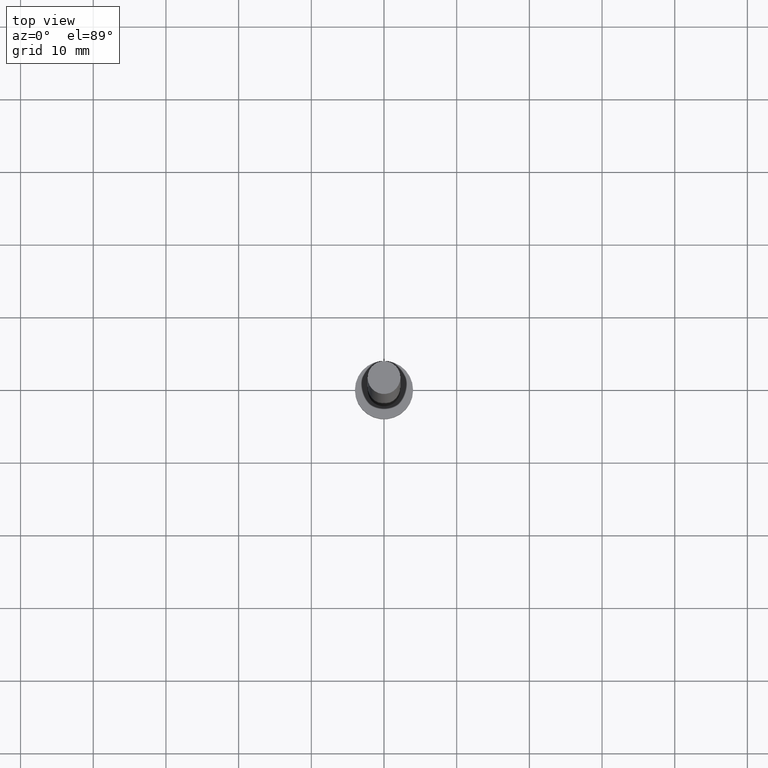
[diagram: clean part render]
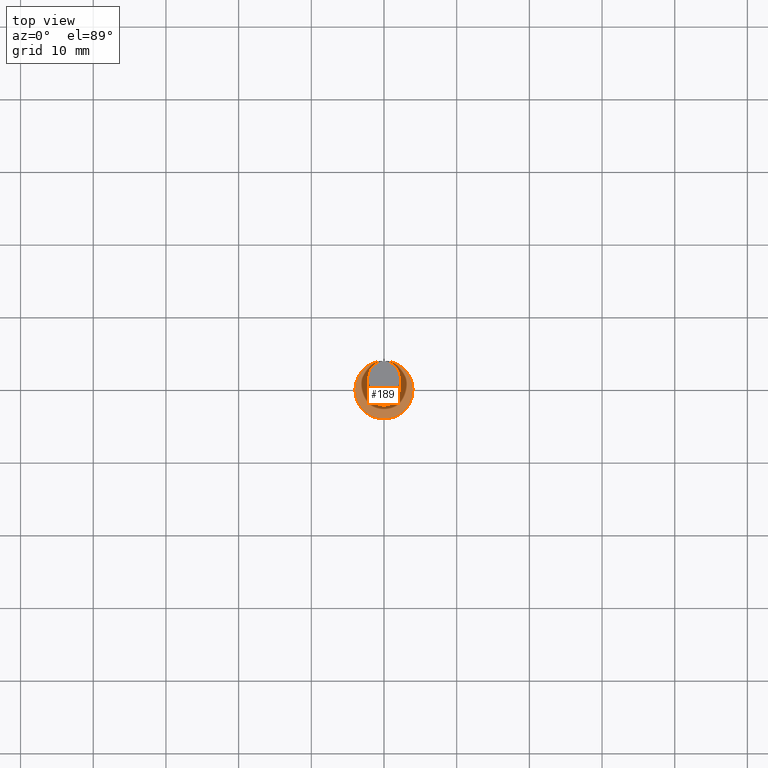
[diagram: same view with one face highlighted and labeled with its STEP entity id]
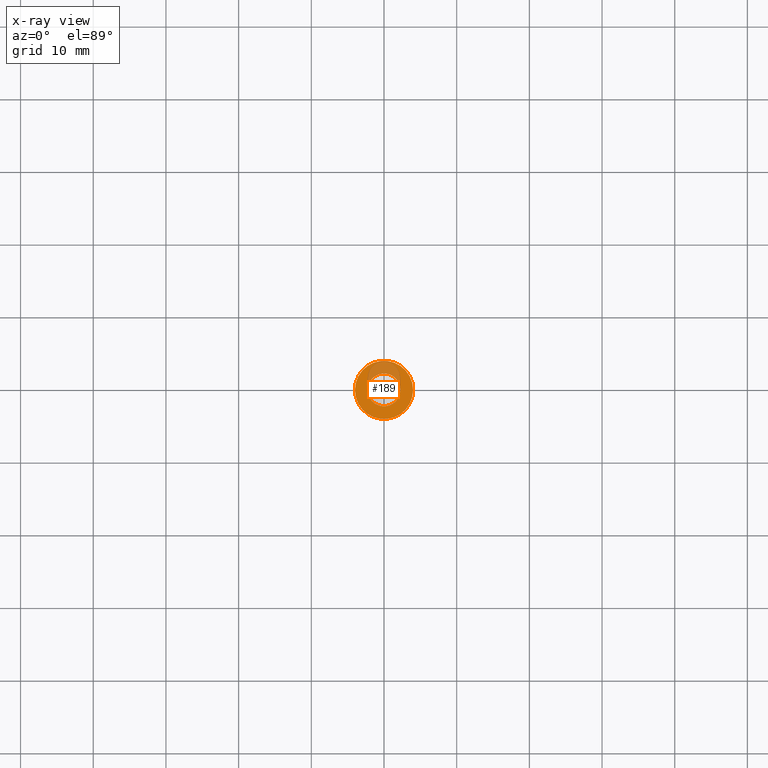
[diagram: x-ray of the same camera — body ghosted, the highlighted face saturated]
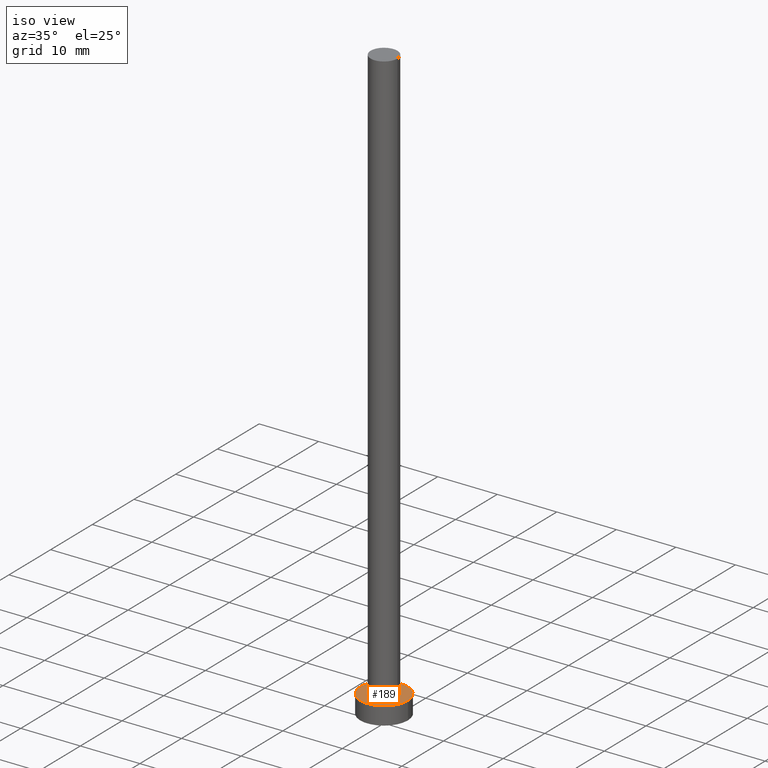
[diagram: same view with one face highlighted and labeled with its STEP entity id]
A machine part, top view. The second image highlights one B-rep face of the part: STEP entity #189.
The next image is the same camera in x-ray: the body ghosted, the highlighted face saturated — about 23% of this face is hidden behind the body in this view.
A second angle (iso view) of the same face is appended — the face is thin or edge-on in the first view.
In plain terms, the highlighted planar face has unit normal (0, 0, 1).
Its self-contained STEP definition (entity closure, byte-faithful):
#2 = CARTESIAN_POINT ( 'NONE',  ( 4.000000000000000000, 4.898587196589412829E-16, 3.000000000000000000 ) ) ;
#5 = DIRECTION ( 'NONE',  ( 1.000000000000000000, 0.000000000000000000, 0.000000000000000000 ) ) ;
#8 = EDGE_CURVE ( 'NONE', #115, #13, #235, .T. ) ;
#10 = AXIS2_PLACEMENT_3D ( 'NONE', #164, #99, #159 ) ;
#12 = VERTEX_POINT ( 'NONE', #93 ) ;
#13 = VERTEX_POINT ( 'NONE', #73 ) ;
#14 = ORIENTED_EDGE ( 'NONE', *, *, #244, .T. ) ;
#18 = PLANE ( 'NONE',  #10 ) ;
#33 = CIRCLE ( 'NONE', #208, 4.000000000000000000 ) ;
#42 = CARTESIAN_POINT ( 'NONE',  ( 0.000000000000000000, 0.000000000000000000, 3.000000000000000000 ) ) ;
#69 = AXIS2_PLACEMENT_3D ( 'NONE', #42, #192, #195 ) ;
#73 = CARTESIAN_POINT ( 'NONE',  ( -2.250000000000000000, 0.000000000000000000, 3.000000000000000000 ) ) ;
#76 = CARTESIAN_POINT ( 'NONE',  ( 0.000000000000000000, 0.000000000000000000, 3.000000000000000000 ) ) ;
#87 = CIRCLE ( 'NONE', #247, 4.000000000000000000 ) ;
#91 = VERTEX_POINT ( 'NONE', #2 ) ;
#93 = CARTESIAN_POINT ( 'NONE',  ( -4.000000000000000000, 0.000000000000000000, 3.000000000000000000 ) ) ;
#99 = DIRECTION ( 'NONE',  ( 0.000000000000000000, 0.000000000000000000, 1.000000000000000000 ) ) ;
#115 = VERTEX_POINT ( 'NONE', #182 ) ;
#117 = AXIS2_PLACEMENT_3D ( 'NONE', #76, #155, #231 ) ;
#121 = DIRECTION ( 'NONE',  ( 0.000000000000000000, 0.000000000000000000, 1.000000000000000000 ) ) ;
#133 = ORIENTED_EDGE ( 'NONE', *, *, #236, .F. ) ;
#138 = FACE_BOUND ( 'NONE', #152, .T. ) ;
#140 = FACE_OUTER_BOUND ( 'NONE', #170, .T. ) ;
#142 = CARTESIAN_POINT ( 'NONE',  ( 0.000000000000000000, 0.000000000000000000, 3.000000000000000000 ) ) ;
#152 = EDGE_LOOP ( 'NONE', ( #133, #211 ) ) ;
#155 = DIRECTION ( 'NONE',  ( 0.000000000000000000, 0.000000000000000000, 1.000000000000000000 ) ) ;
#159 = DIRECTION ( 'NONE',  ( 1.000000000000000000, 0.000000000000000000, -0.000000000000000000 ) ) ;
#164 = CARTESIAN_POINT ( 'NONE',  ( 0.000000000000000000, 0.000000000000000000, 3.000000000000000000 ) ) ;
#170 = EDGE_LOOP ( 'NONE', ( #188, #14 ) ) ;
#178 = DIRECTION ( 'NONE',  ( 0.000000000000000000, 0.000000000000000000, 1.000000000000000000 ) ) ;
#182 = CARTESIAN_POINT ( 'NONE',  ( 2.250000000000000000, 2.755455298081543792E-16, 3.000000000000000000 ) ) ;
#188 = ORIENTED_EDGE ( 'NONE', *, *, #204, .T. ) ;
#189 = ADVANCED_FACE ( 'NONE', ( #138, #140 ), #18, .T. ) ;
#192 = DIRECTION ( 'NONE',  ( 0.000000000000000000, 0.000000000000000000, 1.000000000000000000 ) ) ;
#194 = CIRCLE ( 'NONE', #69, 2.250000000000000000 ) ;
#195 = DIRECTION ( 'NONE',  ( 1.000000000000000000, 0.000000000000000000, 0.000000000000000000 ) ) ;
#196 = DIRECTION ( 'NONE',  ( 1.000000000000000000, 0.000000000000000000, 0.000000000000000000 ) ) ;
#204 = EDGE_CURVE ( 'NONE', #12, #91, #33, .T. ) ;
#208 = AXIS2_PLACEMENT_3D ( 'NONE', #142, #178, #5 ) ;
#211 = ORIENTED_EDGE ( 'NONE', *, *, #8, .F. ) ;
#231 = DIRECTION ( 'NONE',  ( 1.000000000000000000, 0.000000000000000000, 0.000000000000000000 ) ) ;
#235 = CIRCLE ( 'NONE', #117, 2.250000000000000000 ) ;
#236 = EDGE_CURVE ( 'NONE', #13, #115, #194, .T. ) ;
#238 = CARTESIAN_POINT ( 'NONE',  ( 0.000000000000000000, 0.000000000000000000, 3.000000000000000000 ) ) ;
#244 = EDGE_CURVE ( 'NONE', #91, #12, #87, .T. ) ;
#247 = AXIS2_PLACEMENT_3D ( 'NONE', #238, #121, #196 ) ;